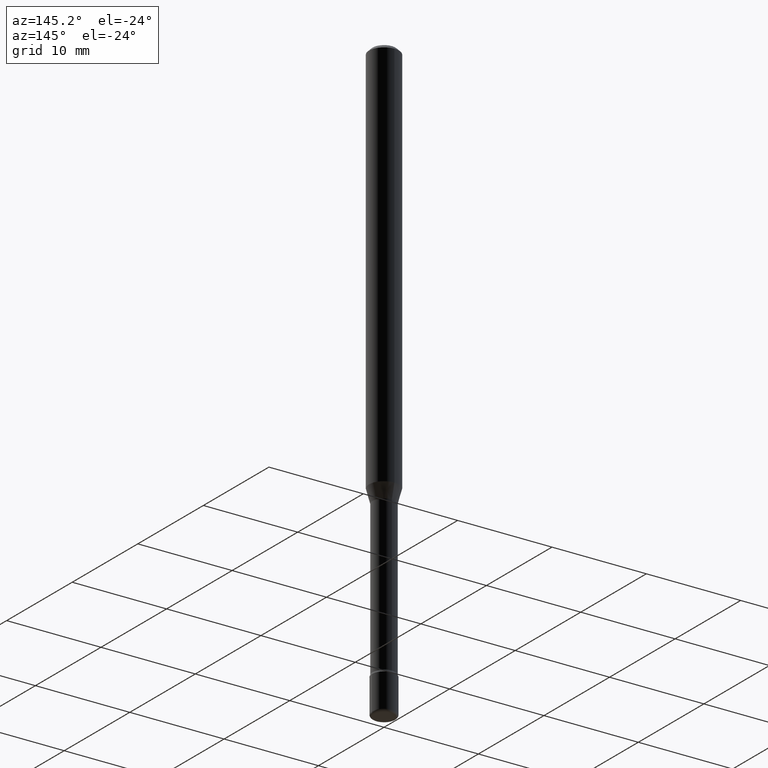
[diagram: clean part render]
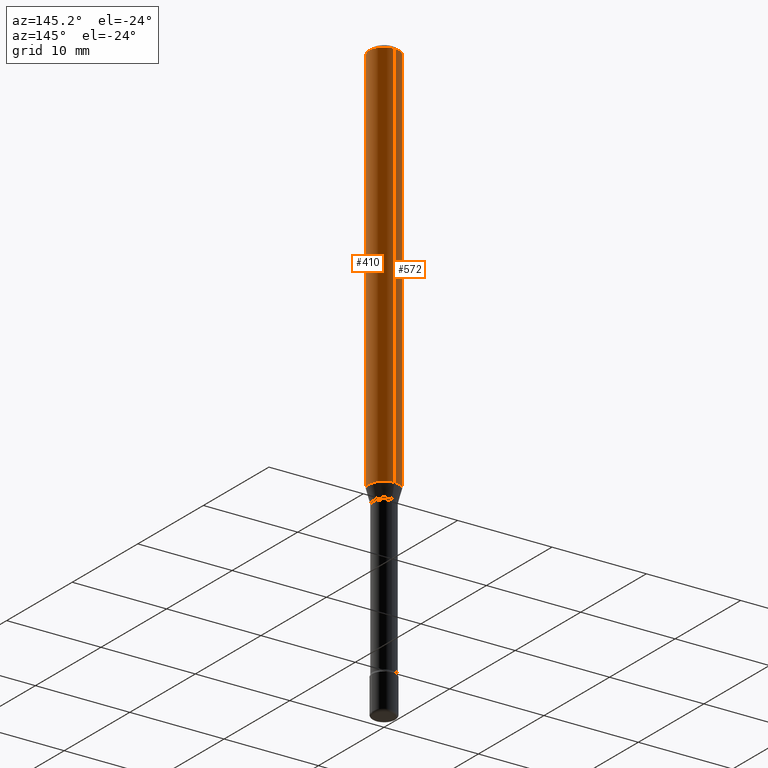
[diagram: same view with one multi-face feature highlighted, each face labeled with its STEP entity id]
A machine part, auxiliary view. The highlighted faces form ONE feature: a constant-radius fillet chain: 2 tangent blend faces with common blend radius 1.5875 mm. The faces share edges in the B-rep.
Their STEP definitions:
[1] entity #572 (Cylinder):
#4 = AXIS2_PLACEMENT_3D ( 'NONE', #508, #110, #329 ) ;
#15 = CARTESIAN_POINT ( 'NONE',  ( -4.364351673553916201E-16, -0.06250000000000000000, 6.962895645038553008E-16 ) ) ;
#42 = ORIENTED_EDGE ( 'NONE', *, *, #374, .F. ) ;
#52 = CIRCLE ( 'NONE', #4, 0.06250000000000000000 ) ;
#55 = CARTESIAN_POINT ( 'NONE',  ( 4.440892098501028481E-16, 0.06249999999999429623, -1.642153212482682978 ) ) ;
#59 = EDGE_CURVE ( 'NONE', #437, #436, #52, .T. ) ;
#109 = DIRECTION ( 'NONE',  ( -2.445484649858063983E-29, 3.491458649801747802E-15, 1.000000000000000000 ) ) ;
#110 = DIRECTION ( 'NONE',  ( -2.445484649858063703E-29, 3.491458649801748196E-15, 1.000000000000000000 ) ) ;
#116 = CARTESIAN_POINT ( 'NONE',  ( 4.440892098500625669E-16, 0.06250000000000000000, 2.598572332786367763E-16 ) ) ;
#135 = ORIENTED_EDGE ( 'NONE', *, *, #307, .T. ) ;
#157 = CIRCLE ( 'NONE', #318, 0.06250000000000000000 ) ;
#167 = FACE_OUTER_BOUND ( 'NONE', #426, .T. ) ;
#173 = ORIENTED_EDGE ( 'NONE', *, *, #208, .T. ) ;
#203 = LINE ( 'NONE', #116, #368 ) ;
#207 = VERTEX_POINT ( 'NONE', #274 ) ;
#208 = EDGE_CURVE ( 'NONE', #207, #436, #355, .T. ) ;
#232 = ORIENTED_EDGE ( 'NONE', *, *, #59, .F. ) ;
#267 = CARTESIAN_POINT ( 'NONE',  ( -1.169113584055446105E-44, 1.669184350826100908E-30, 4.780733988912460139E-16 ) ) ;
#274 = CARTESIAN_POINT ( 'NONE',  ( -4.364351673553512403E-16, -0.06250000000000570377, -1.642153212482682312 ) ) ;
#294 = VECTOR ( 'NONE', #109, 39.37007874015748143 ) ;
#307 = EDGE_CURVE ( 'NONE', #308, #207, #157, .T. ) ;
#308 = VERTEX_POINT ( 'NONE', #55 ) ;
#318 = AXIS2_PLACEMENT_3D ( 'NONE', #363, #544, #391 ) ;
#329 = DIRECTION ( 'NONE',  ( -6.982962677686265922E-15, -1.000000000000000000, 3.483106191921935554E-15 ) ) ;
#332 = CARTESIAN_POINT ( 'NONE',  ( 4.440892098501030453E-16, 0.06249999999999995143, -0.01500000000000024578 ) ) ;
#348 = CYLINDRICAL_SURFACE ( 'NONE', #528, 0.06250000000000000000 ) ;
#355 = LINE ( 'NONE', #15, #294 ) ;
#363 = CARTESIAN_POINT ( 'NONE',  ( 4.015860473841507545E-29, -5.733510038022390740E-15, -1.642153212482682756 ) ) ;
#368 = VECTOR ( 'NONE', #500, 39.37007874015748143 ) ;
#374 = EDGE_CURVE ( 'NONE', #308, #437, #203, .T. ) ;
#379 = DIRECTION ( 'NONE',  ( -2.445484649858063703E-29, 3.491458649801748196E-15, 1.000000000000000000 ) ) ;
#391 = DIRECTION ( 'NONE',  ( -6.982962677686265922E-15, -1.000000000000000000, 4.370956789862821150E-15 ) ) ;
#411 = CARTESIAN_POINT ( 'NONE',  ( -4.364351673553912750E-16, -0.06250000000000005551, -0.01499999999999981036 ) ) ;
#426 = EDGE_LOOP ( 'NONE', ( #42, #135, #173, #232 ) ) ;
#431 = DIRECTION ( 'NONE',  ( -6.982962677686265922E-15, -1.000000000000000000, 3.491458649801747407E-15 ) ) ;
#436 = VERTEX_POINT ( 'NONE', #411 ) ;
#437 = VERTEX_POINT ( 'NONE', #332 ) ;
#500 = DIRECTION ( 'NONE',  ( -2.445484649858063983E-29, 3.491458649801747802E-15, 1.000000000000000000 ) ) ;
#508 = CARTESIAN_POINT ( 'NONE',  ( 3.668226974787102280E-31, -5.237187974702632377E-17, -0.01500000000000002720 ) ) ;
#528 = AXIS2_PLACEMENT_3D ( 'NONE', #267, #379, #431 ) ;
#544 = DIRECTION ( 'NONE',  ( -2.445484649858063703E-29, 3.491458649801748196E-15, 1.000000000000000000 ) ) ;
#572 = ADVANCED_FACE ( 'NONE', ( #167 ), #348, .T. ) ;
[2] entity #410 (Cylinder):
#15 = CARTESIAN_POINT ( 'NONE',  ( -4.364351673553916201E-16, -0.06250000000000000000, 6.962895645038553008E-16 ) ) ;
#55 = CARTESIAN_POINT ( 'NONE',  ( 4.440892098501028481E-16, 0.06249999999999429623, -1.642153212482682978 ) ) ;
#71 = FACE_OUTER_BOUND ( 'NONE', #532, .T. ) ;
#80 = CIRCLE ( 'NONE', #390, 0.06250000000000000000 ) ;
#109 = DIRECTION ( 'NONE',  ( -2.445484649858063983E-29, 3.491458649801747802E-15, 1.000000000000000000 ) ) ;
#112 = EDGE_CURVE ( 'NONE', #207, #308, #80, .T. ) ;
#116 = CARTESIAN_POINT ( 'NONE',  ( 4.440892098500625669E-16, 0.06250000000000000000, 2.598572332786367763E-16 ) ) ;
#121 = DIRECTION ( 'NONE',  ( -6.982962677686265922E-15, -1.000000000000000000, 3.483106191921935554E-15 ) ) ;
#149 = CARTESIAN_POINT ( 'NONE',  ( 4.015860473841507545E-29, -5.733510038022390740E-15, -1.642153212482682756 ) ) ;
#150 = DIRECTION ( 'NONE',  ( -2.445484649858063703E-29, 3.491458649801748196E-15, 1.000000000000000000 ) ) ;
#201 = DIRECTION ( 'NONE',  ( -2.445484649858063703E-29, 3.491458649801748196E-15, 1.000000000000000000 ) ) ;
#203 = LINE ( 'NONE', #116, #368 ) ;
#207 = VERTEX_POINT ( 'NONE', #274 ) ;
#208 = EDGE_CURVE ( 'NONE', #207, #436, #355, .T. ) ;
#228 = ORIENTED_EDGE ( 'NONE', *, *, #397, .F. ) ;
#231 = ORIENTED_EDGE ( 'NONE', *, *, #208, .F. ) ;
#245 = CIRCLE ( 'NONE', #423, 0.06250000000000000000 ) ;
#246 = CYLINDRICAL_SURFACE ( 'NONE', #568, 0.06250000000000000000 ) ;
#274 = CARTESIAN_POINT ( 'NONE',  ( -4.364351673553512403E-16, -0.06250000000000570377, -1.642153212482682312 ) ) ;
#291 = CARTESIAN_POINT ( 'NONE',  ( 3.668226974787102280E-31, -5.237187974702632377E-17, -0.01500000000000002720 ) ) ;
#292 = DIRECTION ( 'NONE',  ( -2.445484649858063703E-29, 3.491458649801748196E-15, 1.000000000000000000 ) ) ;
#294 = VECTOR ( 'NONE', #109, 39.37007874015748143 ) ;
#308 = VERTEX_POINT ( 'NONE', #55 ) ;
#332 = CARTESIAN_POINT ( 'NONE',  ( 4.440892098501030453E-16, 0.06249999999999995143, -0.01500000000000024578 ) ) ;
#355 = LINE ( 'NONE', #15, #294 ) ;
#368 = VECTOR ( 'NONE', #500, 39.37007874015748143 ) ;
#373 = CARTESIAN_POINT ( 'NONE',  ( -1.169113584055446105E-44, 1.669184350826100908E-30, 4.780733988912460139E-16 ) ) ;
#374 = EDGE_CURVE ( 'NONE', #308, #437, #203, .T. ) ;
#390 = AXIS2_PLACEMENT_3D ( 'NONE', #149, #292, #452 ) ;
#397 = EDGE_CURVE ( 'NONE', #436, #437, #245, .T. ) ;
#410 = ADVANCED_FACE ( 'NONE', ( #71 ), #246, .T. ) ;
#411 = CARTESIAN_POINT ( 'NONE',  ( -4.364351673553912750E-16, -0.06250000000000005551, -0.01499999999999981036 ) ) ;
#415 = DIRECTION ( 'NONE',  ( -6.982962677686265922E-15, -1.000000000000000000, 3.491458649801747407E-15 ) ) ;
#423 = AXIS2_PLACEMENT_3D ( 'NONE', #291, #201, #121 ) ;
#436 = VERTEX_POINT ( 'NONE', #411 ) ;
#437 = VERTEX_POINT ( 'NONE', #332 ) ;
#443 = ORIENTED_EDGE ( 'NONE', *, *, #112, .T. ) ;
#452 = DIRECTION ( 'NONE',  ( -6.982962677686265922E-15, -1.000000000000000000, 4.370956789862821150E-15 ) ) ;
#500 = DIRECTION ( 'NONE',  ( -2.445484649858063983E-29, 3.491458649801747802E-15, 1.000000000000000000 ) ) ;
#520 = ORIENTED_EDGE ( 'NONE', *, *, #374, .T. ) ;
#532 = EDGE_LOOP ( 'NONE', ( #443, #520, #228, #231 ) ) ;
#568 = AXIS2_PLACEMENT_3D ( 'NONE', #373, #150, #415 ) ;